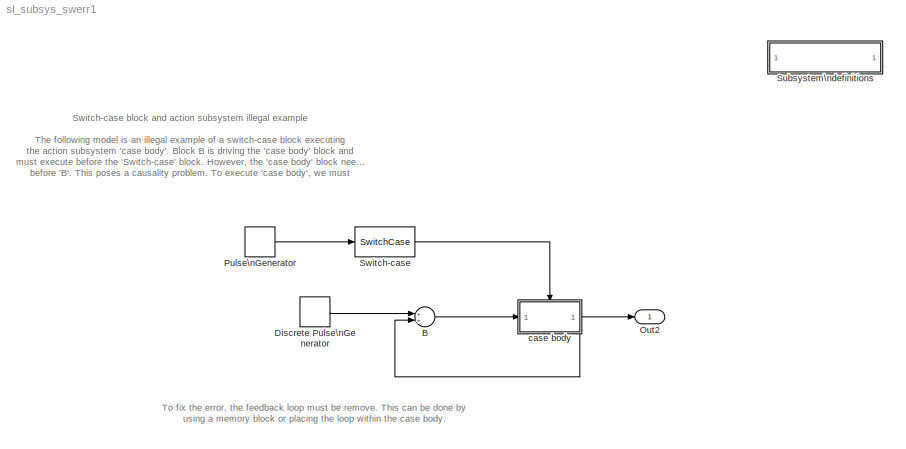
MODEL sl_subsys_swerr1
KIND model
BLOCK [SubSystem]  Subsystem\ndefinitions
  MaskDisplay = disp('Subsystem\\ndefinitions')\n\n
  MaskIconFrame = on
  MaskIconOpaque = on
  MaskIconRotate = none
  MaskIconUnits = autoscale
  MinAlgLoopOccurrences = off
  OpenFcn = helpview([matlabroot,'/toolbox/simulink/simdemos/sl_subsys_definitions.html']);
  Ports = []
  PropExecContextAcrossSSBoundary = on
  RTWSystemCode = Auto
  TreatAsAtomicUnit = off
BLOCK [Sum] B
  Ports = [2, 1]
BLOCK [DiscretePulseGenerator] Discrete Pulse\nGenerator
  Ports = [0, 1]
BLOCK [Outport] Out2
  IconDisplay = Port number
BLOCK [DiscretePulseGenerator] Pulse\nGenerator
  Ports = [0, 1]
BLOCK [SwitchCase] Switch-case
  CaseShowDefault = off
  Ports = [1, 1]
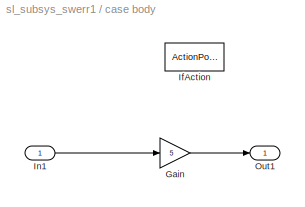
BLOCK [SubSystem] case body
  MinAlgLoopOccurrences = off
  Ports = [1, 1, 0, 0, 0, 0, 0, 1]
  PropExecContextAcrossSSBoundary = on
  RTWSystemCode = Auto
  TreatAsAtomicUnit = on
BLOCK [Gain] case body/Gain
  Gain = 5
BLOCK [ActionPort] case body/IfAction
  ActionType = case
BLOCK [Inport] case body/In1
  IconDisplay = Port number
  LatchInput = off
  Port = 1
BLOCK [Outport] case body/Out1
  IconDisplay = Port number
ANNOTATION (root): Switch-case block and action subsystem illegal example\n\nThe following model is an illegal example of a switch-case block executing\nthe action subsystem 'case body'. Block B is driving the 'case body' block and \nmust execute before the 'Switch-case' block. However, the 'case body' block needs to execute \nbefore 'B'. This poses a causality problem. To execute 'case body', we must \nfirst execut...<+105ch>
ANNOTATION (root): To fix the error, the feedback loop must be remove. This can be done by\nusing a memory block or placing the loop within the case body.
LINE B:1 -> case body:1
LINE Discrete Pulse\nGenerator:1 -> B:1
LINE Pulse\nGenerator:1 -> Switch-case:1
LINE Switch-case:1 -> case body:ifaction
LINE case body/Gain:1 -> case body/Out1:1
LINE case body/In1:1 -> case body/Gain:1
NET case body:1 -> B:2, Out2:1
note: NET lines group one-source signal fan-out (src -> all destinations, sorted); 1:1 wires keep LINE
